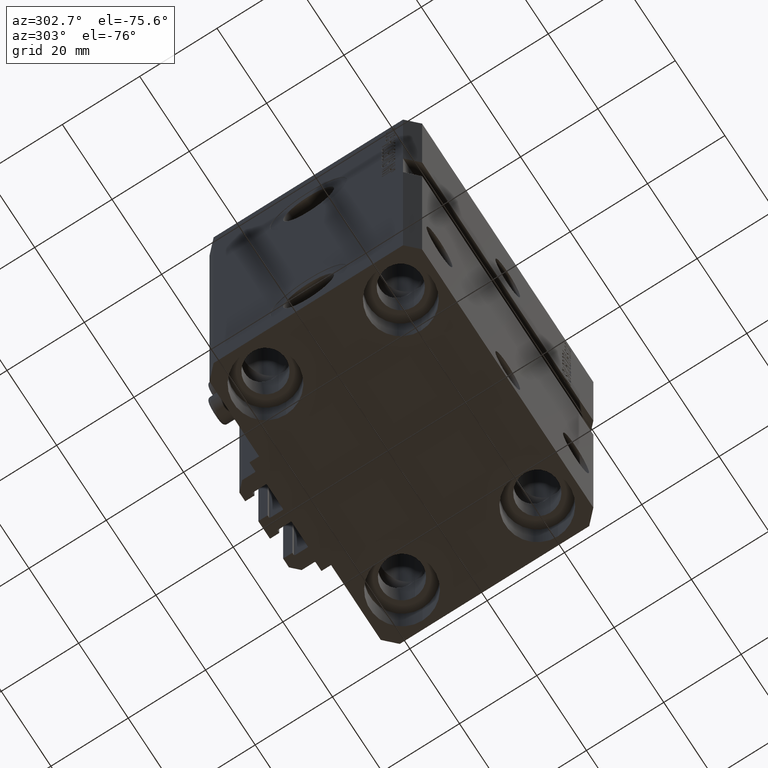
[diagram: clean part render]
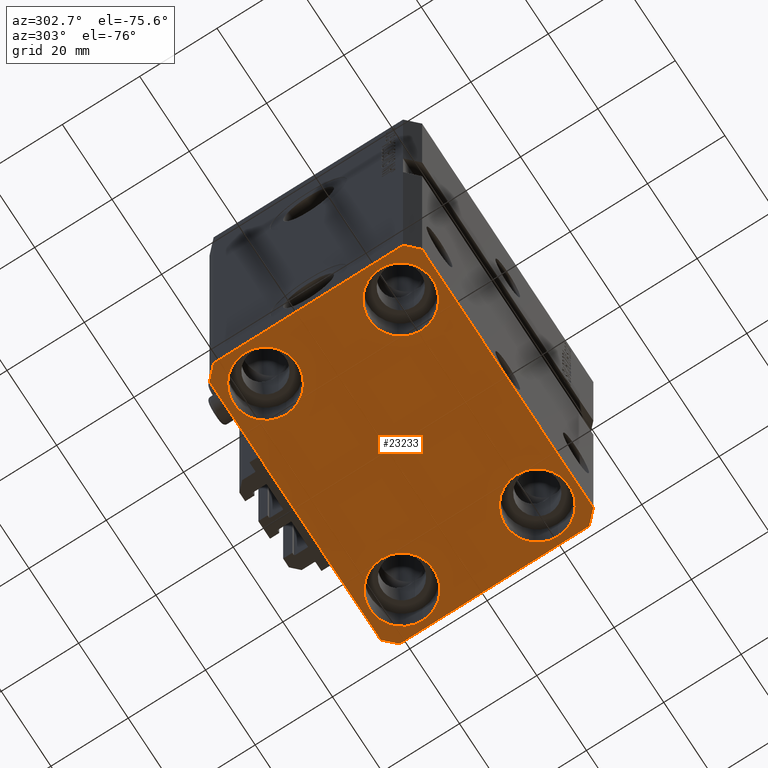
[diagram: same view with one face highlighted and labeled with its STEP entity id]
A machine part, auxiliary view. The second image highlights one B-rep face of the part: STEP entity #23233.
In plain terms, the highlighted planar face has unit normal (0, 0, 1).
Its self-contained STEP definition (entity closure, byte-faithful):
#7 = EDGE_LOOP ( 'NONE', ( #45166, #42576 ) ) ;
#361 = EDGE_CURVE ( 'NONE', #13084, #38333, #36496, .T. ) ;
#514 = CARTESIAN_POINT ( 'NONE',  ( 19.25000000000000000, 17.50000000000001066, -110.0000000000000000 ) ) ;
#1148 = CARTESIAN_POINT ( 'NONE',  ( -34.49999999999999289, 27.50000000000000000, -110.0000000000000000 ) ) ;
#1680 = CIRCLE ( 'NONE', #28468, 8.249999999999992895 ) ;
#1815 = CARTESIAN_POINT ( 'NONE',  ( -27.50000000000000355, -17.50000000000000000, -110.0000000000000000 ) ) ;
#2079 = VECTOR ( 'NONE', #33224, 1000.000000000000000 ) ;
#3883 = CARTESIAN_POINT ( 'NONE',  ( -34.49999999999999289, 27.50000000000000000, -110.0000000000000000 ) ) ;
#3955 = DIRECTION ( 'NONE',  ( 1.000000000000000000, 0.000000000000000000, 0.000000000000000000 ) ) ;
#4082 = DIRECTION ( 'NONE',  ( 1.076236605503979380E-14, 1.000000000000000000, 0.000000000000000000 ) ) ;
#4531 = AXIS2_PLACEMENT_3D ( 'NONE', #31663, #27604, #17316 ) ;
#4967 = CARTESIAN_POINT ( 'NONE',  ( 37.50000000000051870, 24.49999999999995381, -110.0000000000000000 ) ) ;
#5131 = EDGE_CURVE ( 'NONE', #19543, #9383, #23658, .T. ) ;
#5337 = EDGE_CURVE ( 'NONE', #6288, #29694, #25656, .T. ) ;
#5765 = EDGE_CURVE ( 'NONE', #9922, #21306, #6870, .T. ) ;
#6288 = VERTEX_POINT ( 'NONE', #16069 ) ;
#6349 = CARTESIAN_POINT ( 'NONE',  ( -34.49999999999998579, -27.49999999999999645, -110.0000000000000000 ) ) ;
#6442 = VECTOR ( 'NONE', #22671, 1000.000000000000000 ) ;
#6527 = ORIENTED_EDGE ( 'NONE', *, *, #38482, .F. ) ;
#6870 = CIRCLE ( 'NONE', #32886, 8.250000000000000000 ) ;
#7043 = DIRECTION ( 'NONE',  ( 1.000000000000000000, 0.000000000000000000, 0.000000000000000000 ) ) ;
#7484 = LINE ( 'NONE', #3883, #29302 ) ;
#8043 = CARTESIAN_POINT ( 'NONE',  ( 27.49999999999999645, 17.50000000000001066, -110.0000000000000000 ) ) ;
#8597 = ORIENTED_EDGE ( 'NONE', *, *, #26568, .F. ) ;
#8787 = DIRECTION ( 'NONE',  ( -0.000000000000000000, -0.000000000000000000, 1.000000000000000000 ) ) ;
#8846 = CARTESIAN_POINT ( 'NONE',  ( 34.50000000000056843, 27.50000000000000000, -110.0000000000000000 ) ) ;
#9383 = VERTEX_POINT ( 'NONE', #26081 ) ;
#9415 = DIRECTION ( 'NONE',  ( 1.000000000000000000, 0.000000000000000000, 0.000000000000000000 ) ) ;
#9729 = VECTOR ( 'NONE', #22722, 1000.000000000000000 ) ;
#9742 = EDGE_CURVE ( 'NONE', #21306, #9922, #39182, .T. ) ;
#9922 = VERTEX_POINT ( 'NONE', #36631 ) ;
#10226 = CARTESIAN_POINT ( 'NONE',  ( -27.50000000000000355, 17.50000000000000000, -110.0000000000000000 ) ) ;
#10690 = CARTESIAN_POINT ( 'NONE',  ( -35.75000000000000711, 17.50000000000000000, -110.0000000000000000 ) ) ;
#10920 = EDGE_CURVE ( 'NONE', #9383, #19543, #1680, .T. ) ;
#11285 = AXIS2_PLACEMENT_3D ( 'NONE', #1815, #8787, #34158 ) ;
#11672 = FACE_OUTER_BOUND ( 'NONE', #46341, .T. ) ;
#11909 = FACE_BOUND ( 'NONE', #26075, .T. ) ;
#12625 = VECTOR ( 'NONE', #13913, 1000.000000000000114 ) ;
#12957 = VECTOR ( 'NONE', #4082, 1000.000000000000000 ) ;
#13034 = CARTESIAN_POINT ( 'NONE',  ( -35.75000000000000711, -17.50000000000000000, -110.0000000000000000 ) ) ;
#13084 = VERTEX_POINT ( 'NONE', #20416 ) ;
#13141 = CARTESIAN_POINT ( 'NONE',  ( 34.49999999999999289, -27.49999999999999645, -110.0000000000000000 ) ) ;
#13243 = DIRECTION ( 'NONE',  ( -0.000000000000000000, -0.000000000000000000, 1.000000000000000000 ) ) ;
#13665 = AXIS2_PLACEMENT_3D ( 'NONE', #21070, #39244, #25128 ) ;
#13682 = CARTESIAN_POINT ( 'NONE',  ( 34.49999999999999289, -27.49999999999999645, -110.0000000000000000 ) ) ;
#13913 = DIRECTION ( 'NONE',  ( 0.7071067811865474617, 0.7071067811865474617, 0.000000000000000000 ) ) ;
#15723 = LINE ( 'NONE', #25802, #6442 ) ;
#15942 = CARTESIAN_POINT ( 'NONE',  ( 27.50000000000000355, -17.50000000000000000, -110.0000000000000000 ) ) ;
#16069 = CARTESIAN_POINT ( 'NONE',  ( 37.49999999999999289, -24.50000000000000000, -110.0000000000000000 ) ) ;
#16404 = EDGE_CURVE ( 'NONE', #28678, #18333, #22850, .T. ) ;
#16408 = VECTOR ( 'NONE', #19028, 1000.000000000000000 ) ;
#16666 = ORIENTED_EDGE ( 'NONE', *, *, #10920, .T. ) ;
#17303 = AXIS2_PLACEMENT_3D ( 'NONE', #41818, #19338, #30572 ) ;
#17316 = DIRECTION ( 'NONE',  ( 1.000000000000000000, 0.000000000000000000, 0.000000000000000000 ) ) ;
#18333 = VERTEX_POINT ( 'NONE', #6349 ) ;
#18597 = EDGE_CURVE ( 'NONE', #38333, #13084, #40923, .T. ) ;
#18628 = LINE ( 'NONE', #25107, #2079 ) ;
#19028 = DIRECTION ( 'NONE',  ( 0.7071067811865483499, -0.7071067811865466846, 0.000000000000000000 ) ) ;
#19304 = DIRECTION ( 'NONE',  ( 1.000000000000000000, 0.000000000000000000, 0.000000000000000000 ) ) ;
#19338 = DIRECTION ( 'NONE',  ( 0.000000000000000000, 0.000000000000000000, 1.000000000000000000 ) ) ;
#19354 = EDGE_CURVE ( 'NONE', #18333, #20899, #15723, .T. ) ;
#19543 = VERTEX_POINT ( 'NONE', #514 ) ;
#19793 = ORIENTED_EDGE ( 'NONE', *, *, #21754, .F. ) ;
#20416 = CARTESIAN_POINT ( 'NONE',  ( -19.25000000000000355, -17.50000000000000000, -110.0000000000000000 ) ) ;
#20637 = ORIENTED_EDGE ( 'NONE', *, *, #19354, .F. ) ;
#20899 = VERTEX_POINT ( 'NONE', #13141 ) ;
#21070 = CARTESIAN_POINT ( 'NONE',  ( -27.50000000000000355, 17.50000000000000000, -110.0000000000000000 ) ) ;
#21306 = VERTEX_POINT ( 'NONE', #22147 ) ;
#21754 = EDGE_CURVE ( 'NONE', #20899, #6288, #31881, .T. ) ;
#22147 = CARTESIAN_POINT ( 'NONE',  ( 19.25000000000000000, -17.50000000000000000, -110.0000000000000000 ) ) ;
#22150 = ORIENTED_EDGE ( 'NONE', *, *, #9742, .T. ) ;
#22671 = DIRECTION ( 'NONE',  ( 1.000000000000000000, 0.000000000000000000, 0.000000000000000000 ) ) ;
#22722 = DIRECTION ( 'NONE',  ( 0.000000000000000000, -1.000000000000000000, 0.000000000000000000 ) ) ;
#22850 = LINE ( 'NONE', #37672, #16408 ) ;
#23233 = ADVANCED_FACE ( 'NONE', ( #11909, #44693, #37517, #26526, #11672 ), #35292, .F. ) ;
#23658 = CIRCLE ( 'NONE', #4531, 8.249999999999992895 ) ;
#24504 = EDGE_LOOP ( 'NONE', ( #32845, #16666 ) ) ;
#24561 = ORIENTED_EDGE ( 'NONE', *, *, #16404, .F. ) ;
#24687 = LINE ( 'NONE', #28279, #39528 ) ;
#24811 = CIRCLE ( 'NONE', #37767, 8.250000000000000000 ) ;
#25107 = CARTESIAN_POINT ( 'NONE',  ( 34.50000000000056843, 27.50000000000000000, -110.0000000000000000 ) ) ;
#25128 = DIRECTION ( 'NONE',  ( 1.000000000000000000, 0.000000000000000000, 0.000000000000000000 ) ) ;
#25321 = EDGE_CURVE ( 'NONE', #29694, #38995, #24687, .T. ) ;
#25585 = EDGE_CURVE ( 'NONE', #31326, #28678, #27267, .T. ) ;
#25629 = VERTEX_POINT ( 'NONE', #1148 ) ;
#25656 = LINE ( 'NONE', #25898, #12957 ) ;
#25802 = CARTESIAN_POINT ( 'NONE',  ( -34.49999999999998579, -27.49999999999999645, -110.0000000000000000 ) ) ;
#25898 = CARTESIAN_POINT ( 'NONE',  ( 37.49999999999999289, -24.50000000000000000, -110.0000000000000000 ) ) ;
#26075 = EDGE_LOOP ( 'NONE', ( #32538, #38418 ) ) ;
#26081 = CARTESIAN_POINT ( 'NONE',  ( 35.74999999999999289, 17.50000000000001066, -110.0000000000000000 ) ) ;
#26488 = DIRECTION ( 'NONE',  ( -0.000000000000000000, -0.000000000000000000, 1.000000000000000000 ) ) ;
#26526 = FACE_BOUND ( 'NONE', #7, .T. ) ;
#26568 = EDGE_CURVE ( 'NONE', #38995, #25629, #18628, .T. ) ;
#26922 = ORIENTED_EDGE ( 'NONE', *, *, #5765, .T. ) ;
#27267 = LINE ( 'NONE', #30846, #9729 ) ;
#27604 = DIRECTION ( 'NONE',  ( -0.000000000000000000, -0.000000000000000000, 1.000000000000000000 ) ) ;
#27965 = DIRECTION ( 'NONE',  ( -0.000000000000000000, -0.000000000000000000, 1.000000000000000000 ) ) ;
#28191 = CIRCLE ( 'NONE', #13665, 8.250000000000000000 ) ;
#28279 = CARTESIAN_POINT ( 'NONE',  ( 37.50000000000051870, 24.49999999999995381, -110.0000000000000000 ) ) ;
#28468 = AXIS2_PLACEMENT_3D ( 'NONE', #8043, #26488, #45131 ) ;
#28678 = VERTEX_POINT ( 'NONE', #40472 ) ;
#28834 = EDGE_CURVE ( 'NONE', #30742, #39906, #28191, .T. ) ;
#29302 = VECTOR ( 'NONE', #45048, 1000.000000000000000 ) ;
#29694 = VERTEX_POINT ( 'NONE', #4967 ) ;
#30572 = DIRECTION ( 'NONE',  ( 1.000000000000000000, 0.000000000000000000, -0.000000000000000000 ) ) ;
#30742 = VERTEX_POINT ( 'NONE', #10690 ) ;
#30846 = CARTESIAN_POINT ( 'NONE',  ( -37.49999999999999289, 24.50000000000000000, -110.0000000000000000 ) ) ;
#31011 = DIRECTION ( 'NONE',  ( -0.000000000000000000, -0.000000000000000000, 1.000000000000000000 ) ) ;
#31326 = VERTEX_POINT ( 'NONE', #45235 ) ;
#31548 = CARTESIAN_POINT ( 'NONE',  ( 27.50000000000000355, -17.50000000000000000, -110.0000000000000000 ) ) ;
#31663 = CARTESIAN_POINT ( 'NONE',  ( 27.49999999999999645, 17.50000000000001066, -110.0000000000000000 ) ) ;
#31683 = EDGE_LOOP ( 'NONE', ( #22150, #26922 ) ) ;
#31881 = LINE ( 'NONE', #13682, #12625 ) ;
#31984 = ORIENTED_EDGE ( 'NONE', *, *, #25321, .F. ) ;
#32538 = ORIENTED_EDGE ( 'NONE', *, *, #18597, .T. ) ;
#32845 = ORIENTED_EDGE ( 'NONE', *, *, #5131, .T. ) ;
#32886 = AXIS2_PLACEMENT_3D ( 'NONE', #15942, #31011, #19304 ) ;
#33224 = DIRECTION ( 'NONE',  ( -1.000000000000000000, 0.000000000000000000, 0.000000000000000000 ) ) ;
#34158 = DIRECTION ( 'NONE',  ( 1.000000000000000000, 0.000000000000000000, 0.000000000000000000 ) ) ;
#35292 = PLANE ( 'NONE',  #17303 ) ;
#35830 = DIRECTION ( 'NONE',  ( -0.000000000000000000, -0.000000000000000000, 1.000000000000000000 ) ) ;
#36496 = CIRCLE ( 'NONE', #11285, 8.250000000000000000 ) ;
#36631 = CARTESIAN_POINT ( 'NONE',  ( 35.75000000000000711, -17.50000000000000000, -110.0000000000000000 ) ) ;
#37221 = ORIENTED_EDGE ( 'NONE', *, *, #5337, .F. ) ;
#37517 = FACE_BOUND ( 'NONE', #24504, .T. ) ;
#37672 = CARTESIAN_POINT ( 'NONE',  ( -37.49999999999999289, -24.50000000000000000, -110.0000000000000000 ) ) ;
#37767 = AXIS2_PLACEMENT_3D ( 'NONE', #10226, #35830, #3955 ) ;
#38333 = VERTEX_POINT ( 'NONE', #13034 ) ;
#38418 = ORIENTED_EDGE ( 'NONE', *, *, #361, .T. ) ;
#38482 = EDGE_CURVE ( 'NONE', #25629, #31326, #7484, .T. ) ;
#38617 = CARTESIAN_POINT ( 'NONE',  ( -27.50000000000000355, -17.50000000000000000, -110.0000000000000000 ) ) ;
#38995 = VERTEX_POINT ( 'NONE', #8846 ) ;
#39042 = DIRECTION ( 'NONE',  ( -0.7071067811865356934, 0.7071067811865594521, 0.000000000000000000 ) ) ;
#39182 = CIRCLE ( 'NONE', #45289, 8.250000000000000000 ) ;
#39244 = DIRECTION ( 'NONE',  ( -0.000000000000000000, -0.000000000000000000, 1.000000000000000000 ) ) ;
#39528 = VECTOR ( 'NONE', #39042, 1000.000000000000114 ) ;
#39906 = VERTEX_POINT ( 'NONE', #42125 ) ;
#40324 = ORIENTED_EDGE ( 'NONE', *, *, #25585, .F. ) ;
#40341 = EDGE_CURVE ( 'NONE', #39906, #30742, #24811, .T. ) ;
#40472 = CARTESIAN_POINT ( 'NONE',  ( -37.49999999999999289, -24.50000000000000000, -110.0000000000000000 ) ) ;
#40923 = CIRCLE ( 'NONE', #46291, 8.250000000000000000 ) ;
#41818 = CARTESIAN_POINT ( 'NONE',  ( 0.000000000000000000, 0.000000000000000000, -110.0000000000000000 ) ) ;
#42125 = CARTESIAN_POINT ( 'NONE',  ( -19.25000000000000355, 17.50000000000000000, -110.0000000000000000 ) ) ;
#42576 = ORIENTED_EDGE ( 'NONE', *, *, #40341, .T. ) ;
#44693 = FACE_BOUND ( 'NONE', #31683, .T. ) ;
#45048 = DIRECTION ( 'NONE',  ( -0.7071067811865471286, -0.7071067811865479058, 0.000000000000000000 ) ) ;
#45131 = DIRECTION ( 'NONE',  ( 1.000000000000000000, 0.000000000000000000, 0.000000000000000000 ) ) ;
#45166 = ORIENTED_EDGE ( 'NONE', *, *, #28834, .T. ) ;
#45235 = CARTESIAN_POINT ( 'NONE',  ( -37.49999999999999289, 24.50000000000000000, -110.0000000000000000 ) ) ;
#45289 = AXIS2_PLACEMENT_3D ( 'NONE', #31548, #27965, #7043 ) ;
#46291 = AXIS2_PLACEMENT_3D ( 'NONE', #38617, #13243, #9415 ) ;
#46341 = EDGE_LOOP ( 'NONE', ( #8597, #31984, #37221, #19793, #20637, #24561, #40324, #6527 ) ) ;